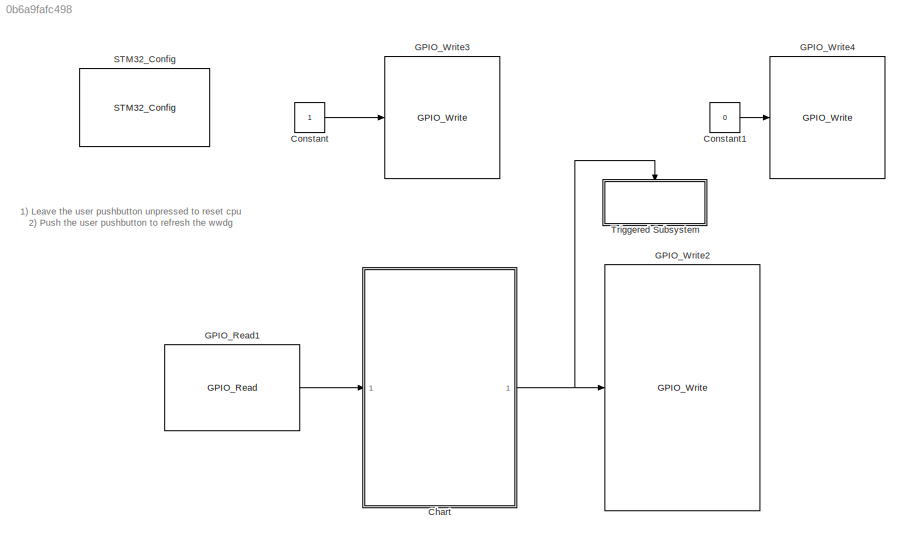
MODEL slx_0b6a9fafc498
KIND model
CONFIG AbsTol = auto
CONFIG EnableMultiTasking = on
CONFIG FixedStep = 0.010
CONFIG MaxStep = auto
CONFIG MinStep = auto
CONFIG RelTol = 1e-3
CONFIG SampleTimeConstraint = Unconstrained
CONFIG Solver = FixedStepDiscrete
CONFIG SolverName = FixedStepDiscrete
CONFIG StartTime = 0.0
CONFIG StopTime = 10.0
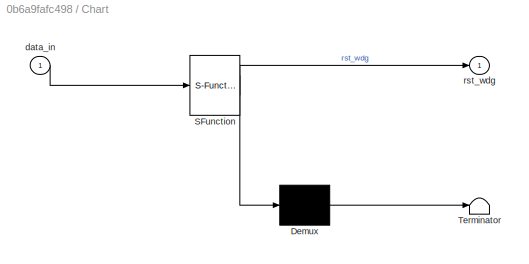
BLOCK [SubSystem] Chart
  ErrorFcn = Stateflow.Translate.translate
  PermitHierarchicalResolution = ExplicitOnly
  Ports = [1, 1]
  RequestExecContextInheritance = off
  SFBlockType = Chart
  TreatAsAtomicUnit = on
BLOCK [Demux] Chart/ Demux 
  Outputs = 1
  Ports = [1, 1]
BLOCK [S-Function] Chart/ SFunction 
  EnableBusSupport = on
  FunctionName = sf_sfun
  PortCounts = [1 2]
  Ports = [1, 2]
  SFcnIsStateOwnerBlock = off
  SFunctionDeploymentMode = off
  Tag = Stateflow S-Function TestIWDG 1
BLOCK [Terminator] Chart/ Terminator 
BLOCK [Inport] Chart/data_in
  IconDisplay = Port number
BLOCK [Outport] Chart/rst_wdg
  IconDisplay = Port number
BLOCK [Constant] Constant
BLOCK [Constant] Constant1
  Value = 0
BLOCK [Reference] GPIO_Read1  REF=GPIO_Lib/GPIO_Read
  Ports = [0, 1]
  SourceBlock = GPIO_Lib/GPIO_Read
  SourceProductName = Target Support Package - STM32 Adapter
  SourceType = GPIO_Read
BLOCK [Reference] GPIO_Write2  REF=GPIO_Lib/GPIO_Write
  Ports = [1]
  SourceBlock = GPIO_Lib/GPIO_Write
  SourceProductName = Target Support Package - STM32 Adapter
  SourceType = GPIO_Write
BLOCK [Reference] GPIO_Write3  REF=GPIO_Lib/GPIO_Write
  Ports = [1]
  Priority = 1
  SourceBlock = GPIO_Lib/GPIO_Write
  SourceProductName = Target Support Package - STM32 Adapter
  SourceType = GPIO_Write
BLOCK [Reference] GPIO_Write4  REF=GPIO_Lib/GPIO_Write
  Ports = [1]
  Priority = 20
  SourceBlock = GPIO_Lib/GPIO_Write
  SourceProductName = Target Support Package - STM32 Adapter
  SourceType = GPIO_Write
BLOCK [Reference] STM32_Config  REF=STM32_Config_Lib/STM32_Config
  Ports = []
  SourceBlock = STM32_Config_Lib/STM32_Config
  SourceProductName = Target Support Package - STM32 Adapter
  SourceType = STM32_Config
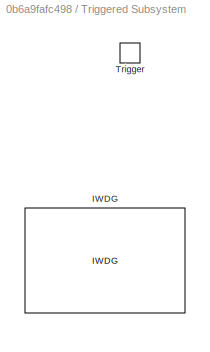
BLOCK [SubSystem] Triggered Subsystem
  Ports = [0, 0, 0, 1]
  RequestExecContextInheritance = off
  TreatAsAtomicUnit = on
BLOCK [Reference] Triggered Subsystem/IWDG  REF=WDG_Lib/IWDG
  Ports = []
  SourceBlock = WDG_Lib/IWDG
  SourceProductName = Target Support Package - STM32 Adapter
  SourceType = IWDG
BLOCK [TriggerPort] Triggered Subsystem/Trigger
  Ports = []
  StatesWhenEnabling = held
  VariantControl = Variant
ANNOTATION (root): 1) Leave the user pushbutton unpressed to reset cpu 2) Push the user pushbutton to refresh the wwdg
NET Chart:1 -> GPIO_Write2:1, Triggered Subsystem:trigger
LINE Constant1:1 -> GPIO_Write4:1
LINE Constant:1 -> GPIO_Write3:1
LINE GPIO_Read1:1 -> Chart:1
note: NET lines group one-source signal fan-out (src -> all destinations, sorted); 1:1 wires keep LINE
CHART Chart states=2 transitions=4
  STATE_LABEL 'RSTcpu\nen:\n   rst_wdg = false;'
  STATE_LABEL 'RSTwdg\nen:\n   rst_wdg = !rst_wdg;\n'
